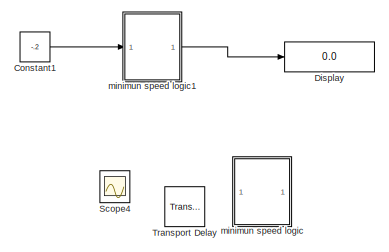
[diagram: root canvas - part 1/2, middle left region]
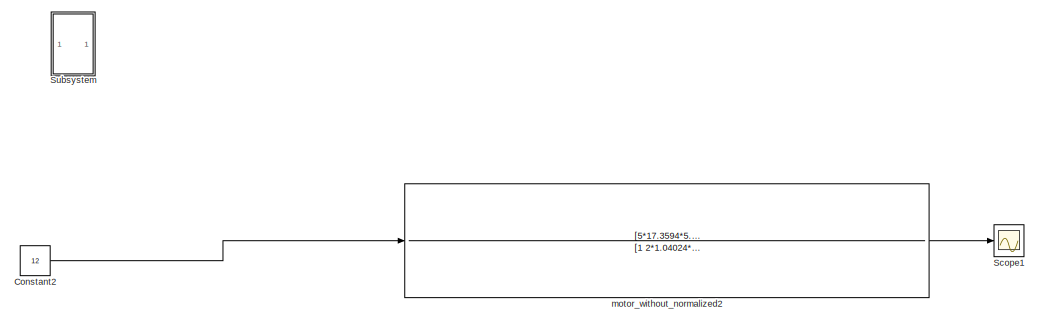
[diagram: root canvas - part 2/2, right side, full height]
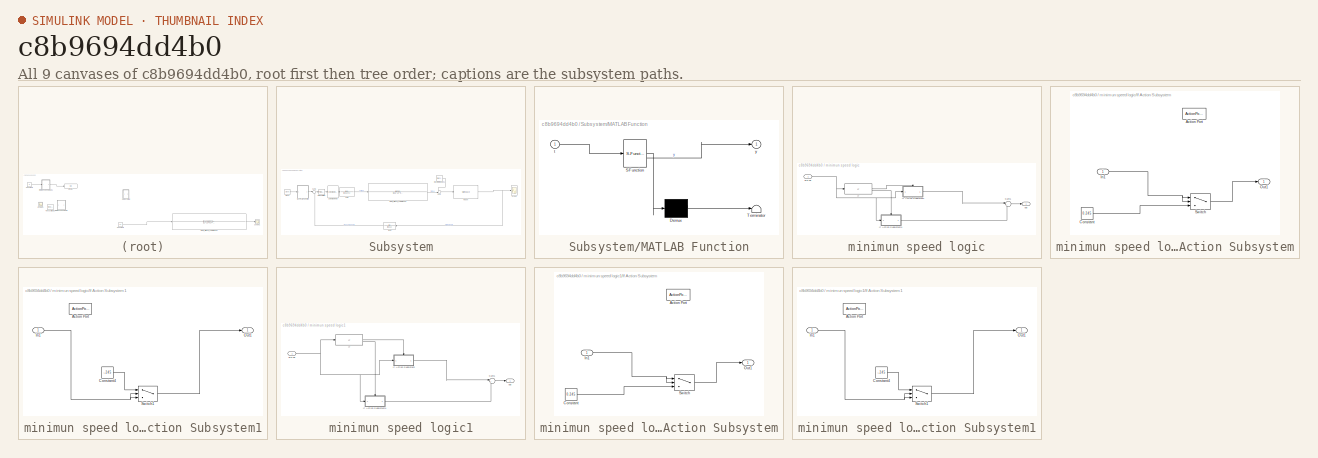
[diagram: thumbnail index - all 9 canvases of the model, root first then tree order]
MODEL slx_c8b9694dd4b0
KIND model
CONFIG AbsTol = auto
CONFIG EnableMultiTasking = off
CONFIG FixedStep = 1e-6
CONFIG MaxStep = auto
CONFIG MinStep = auto
CONFIG RelTol = 1e-3
CONFIG SampleTimeConstraint = Unconstrained
CONFIG SolverName = VariableStepAuto
CONFIG StartTime = 0.0
CONFIG StopTime = 1.5
BLOCK [Constant] Constant1
  Commented = on
  Value = -.2
BLOCK [Constant] Constant2
  Commented = on
  Value = 12
BLOCK [Display] Display
  Commented = on
  Decimation = 1
BLOCK [Scope] Scope1
  Commented = on
  Floating = off
  NumInputPorts = 1
  ScopeSpecificationString = Simulink.scopes.TimeScopeBlockCfg('CurrentConfiguration', extmgr.ConfigurationSet(extmgr.Configuration('Core','General UI',true),extmgr.Configuration('Core','Source UI',true),extmgr.Configuration('Sources','WiredSimulink',true,'DataLoggingVariableName','ScopeData1'),extmgr.Configuration('Visuals','Time Domain',true,'SerializedDisplays',{struct('MinYLimReal','-0.45358','MaxYLimReal','4.08218','YLab...<+1461ch>
BLOCK [Scope] Scope4
  Commented = on
  Floating = off
  NumInputPorts = 1
  ScopeSpecificationString = Simulink.scopes.TimeScopeBlockCfg('CurrentConfiguration', extmgr.ConfigurationSet(extmgr.Configuration('Core','General UI',true),extmgr.Configuration('Core','Source UI',true),extmgr.Configuration('Sources','WiredSimulink',true,'DataLoggingVariableName','ScopeData1'),extmgr.Configuration('Visuals','Time Domain',true,'SerializedDisplays',{struct('MinYLimReal','-56.13831','MaxYLimReal','6.23759','YLa...<+1388ch>
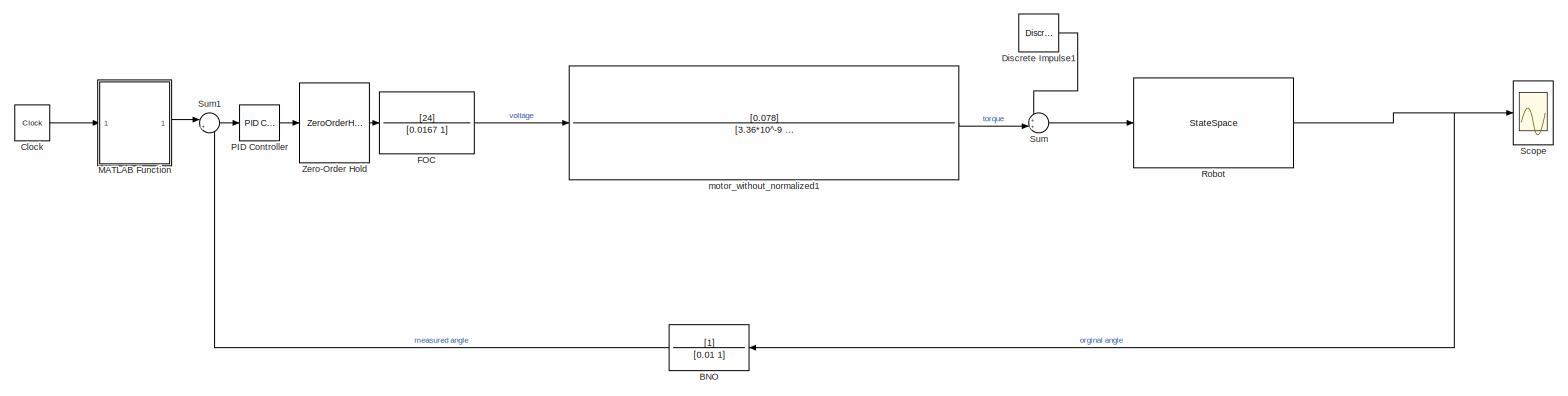
[diagram: Subsystem - part 1/1, most of the canvas]
BLOCK [SubSystem] Subsystem
BLOCK [TransferFcn] Subsystem/BNO
  Denominator = [0.01 1]
BLOCK [Clock] Subsystem/Clock
BLOCK [Reference] Subsystem/Discrete Impulse1  REF=dspsrcs4/Discrete 
Impulse
  SourceBlock = dspsrcs4/Discrete \nImpulse
  SourceType = Discrete Impulse
BLOCK [TransferFcn] Subsystem/FOC
  Denominator = [0.0167 1]
  Numerator = [24]
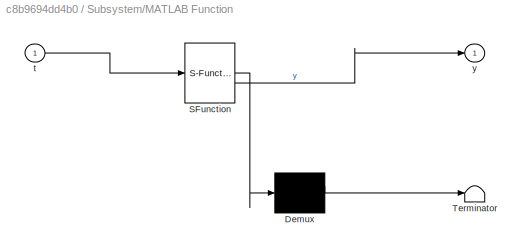
BLOCK [SubSystem] Subsystem/MATLAB Function
  ErrorFcn = Stateflow.Translate.translate
  LibrarySourceBlock = simulink/User-Defined\nFunctions/MATLAB Function
  PermitHierarchicalResolution = ExplicitOnly
  SFBlockType = MATLAB Function
  TreatAsAtomicUnit = on
BLOCK [Demux] Subsystem/MATLAB Function/ Demux 
  Outputs = 1
BLOCK [S-Function] Subsystem/MATLAB Function/ SFunction 
  EnableBusSupport = on
  FunctionName = sf_sfun
  PortCounts = [1 2]
  SFcnIsStateOwnerBlock = off
  SFunctionDeploymentMode = off
  Tag = Stateflow S-Function 2
BLOCK [Terminator] Subsystem/MATLAB Function/ Terminator 
BLOCK [Inport] Subsystem/MATLAB Function/t
BLOCK [Outport] Subsystem/MATLAB Function/y
BLOCK [Reference] Subsystem/PID Controller  REF=slpidlib/PID Controller
  SourceBlock = slpidlib/PID Controller
  SourceType = PID 1dof
BLOCK [StateSpace] Subsystem/Robot
  A = A
  B = B
  C = C
  D = D
  InitialCondition = 0
BLOCK [Scope] Subsystem/Scope
  Floating = off
  NumInputPorts = 1
  ScopeSpecificationString = Simulink.scopes.TimeScopeBlockCfg('CurrentConfiguration', extmgr.ConfigurationSet(extmgr.Configuration('Core','General UI',true,'FigureColor',[1 1 1]),extmgr.Configuration('Core','Source UI',true),extmgr.Configuration('Sources','WiredSimulink',true,'DataLoggingVariableName','ScopeData1'),extmgr.Configuration('Visuals','Time Domain',true,'SerializedDisplays',{struct('MinYLimReal','-0.90885','MaxYLi...<+1666ch>
BLOCK [Sum] Subsystem/Sum
  Inputs = ++|
BLOCK [Sum] Subsystem/Sum1
  Inputs = |+-
BLOCK [ZeroOrderHold] Subsystem/Zero-Order Hold
  SampleTime = 30/1000
BLOCK [TransferFcn] Subsystem/motor_without_normalized1
  Denominator = [3.36*10^-9  4.96*10^-6 10.96]
  Numerator = [0.078]
BLOCK [TransportDelay] Transport Delay
  Commented = on
  DelayTime = 0.1
BLOCK [SubSystem] minimun speed logic
  Commented = on
BLOCK [If] minimun speed logic/If
BLOCK [SubSystem] minimun speed logic/If Action Subsystem
  TreatAsAtomicUnit = on
BLOCK [ActionPort] minimun speed logic/If Action Subsystem/Action Port
BLOCK [Constant] minimun speed logic/If Action Subsystem/Constant
  Value = 0.245
BLOCK [Inport] minimun speed logic/If Action Subsystem/In1
BLOCK [Outport] minimun speed logic/If Action Subsystem/Out1
  VectorParamsAs1DForOutWhenUnconnected = off
BLOCK [Switch] minimun speed logic/If Action Subsystem/Switch
  Criteria = u2 > Threshold
  InputSameDT = off
  SaturateOnIntegerOverflow = off
  Threshold = .245
BLOCK [SubSystem] minimun speed logic/If Action Subsystem1
  TreatAsAtomicUnit = on
BLOCK [ActionPort] minimun speed logic/If Action Subsystem1/Action Port
BLOCK [Constant] minimun speed logic/If Action Subsystem1/Constant4
  Value = -.245
BLOCK [Inport] minimun speed logic/If Action Subsystem1/In1
BLOCK [Outport] minimun speed logic/If Action Subsystem1/Out1
  VectorParamsAs1DForOutWhenUnconnected = off
BLOCK [Switch] minimun speed logic/If Action Subsystem1/Switch1
  Criteria = u2 > Threshold
  InputSameDT = off
  SaturateOnIntegerOverflow = off
  Threshold = -.245
BLOCK [Sum] minimun speed logic/Sum1
  Inputs = |++
BLOCK [Outport] minimun speed logic/out
  VectorParamsAs1DForOutWhenUnconnected = off
BLOCK [Inport] minimun speed logic/pid val
BLOCK [SubSystem] minimun speed logic1
  Commented = on
BLOCK [If] minimun speed logic1/If
BLOCK [SubSystem] minimun speed logic1/If Action Subsystem
  TreatAsAtomicUnit = on
BLOCK [ActionPort] minimun speed logic1/If Action Subsystem/Action Port
  ActionPortLabel = if { }
BLOCK [Constant] minimun speed logic1/If Action Subsystem/Constant
  Value = 0.245
BLOCK [Inport] minimun speed logic1/If Action Subsystem/In1
BLOCK [Outport] minimun speed logic1/If Action Subsystem/Out1
  VectorParamsAs1DForOutWhenUnconnected = off
BLOCK [Switch] minimun speed logic1/If Action Subsystem/Switch
  Criteria = u2 > Threshold
  InputSameDT = off
  SaturateOnIntegerOverflow = off
  Threshold = .245
BLOCK [SubSystem] minimun speed logic1/If Action Subsystem1
  TreatAsAtomicUnit = on
BLOCK [ActionPort] minimun speed logic1/If Action Subsystem1/Action Port
  ActionPortLabel = else { }
BLOCK [Constant] minimun speed logic1/If Action Subsystem1/Constant4
  Value = -.245
BLOCK [Inport] minimun speed logic1/If Action Subsystem1/In1
BLOCK [Outport] minimun speed logic1/If Action Subsystem1/Out1
  VectorParamsAs1DForOutWhenUnconnected = off
BLOCK [Switch] minimun speed logic1/If Action Subsystem1/Switch1
  Criteria = u2 > Threshold
  InputSameDT = off
  SaturateOnIntegerOverflow = off
  Threshold = -.245
BLOCK [Sum] minimun speed logic1/Sum1
  Inputs = |++
BLOCK [Outport] minimun speed logic1/out
  VectorParamsAs1DForOutWhenUnconnected = off
BLOCK [Inport] minimun speed logic1/pid val
BLOCK [TransferFcn] motor_without_normalized2
  Commented = on
  Denominator = [1 2*1.04024*5.1137 5.1137^2]
  Numerator = [5*17.3594*5.1137*Ip 5*17.3594*5.1137*b]
LINE Constant1:1 -> minimun speed logic1:1
LINE Constant2:1 -> motor_without_normalized2:1
LINE Subsystem/BNO:1 -> Subsystem/Sum1:2
LINE Subsystem/Clock:1 -> Subsystem/MATLAB Function:1
LINE Subsystem/Discrete Impulse1:1 -> Subsystem/Sum:1
LINE Subsystem/FOC:1 -> Subsystem/motor_without_normalized1:1
LINE Subsystem/MATLAB Function:1 -> Subsystem/Sum1:1
LINE Subsystem/PID Controller:1 -> Subsystem/Zero-Order Hold:1
NET Subsystem/Robot:1 -> Subsystem/BNO:1, Subsystem/Scope:1
LINE Subsystem/Sum1:1 -> Subsystem/PID Controller:1
LINE Subsystem/Sum:1 -> Subsystem/Robot:1
LINE Subsystem/Zero-Order Hold:1 -> Subsystem/FOC:1
LINE Subsystem/motor_without_normalized1:1 -> Subsystem/Sum:2
LINE minimun speed logic/If Action Subsystem/Constant:1 -> minimun speed logic/If Action Subsystem/Switch:3
NET minimun speed logic/If Action Subsystem/In1:1 -> minimun speed logic/If Action Subsystem/Switch:1, minimun speed logic/If Action Subsystem/Switch:2
LINE minimun speed logic/If Action Subsystem/Switch:1 -> minimun speed logic/If Action Subsystem/Out1:1
LINE minimun speed logic/If Action Subsystem1/Constant4:1 -> minimun speed logic/If Action Subsystem1/Switch1:1
NET minimun speed logic/If Action Subsystem1/In1:1 -> minimun speed logic/If Action Subsystem1/Switch1:2, minimun speed logic/If Action Subsystem1/Switch1:3
LINE minimun speed logic/If Action Subsystem1/Switch1:1 -> minimun speed logic/If Action Subsystem1/Out1:1
LINE minimun speed logic/If Action Subsystem1:1 -> minimun speed logic/Sum1:2
LINE minimun speed logic/If Action Subsystem:1 -> minimun speed logic/Sum1:1
LINE minimun speed logic/If:1 -> minimun speed logic/If Action Subsystem:ifaction
LINE minimun speed logic/If:2 -> minimun speed logic/If Action Subsystem1:ifaction
LINE minimun speed logic/Sum1:1 -> minimun speed logic/out:1
NET minimun speed logic/pid val:1 -> minimun speed logic/If Action Subsystem1:1, minimun speed logic/If Action Subsystem:1, minimun speed logic/If:1
LINE minimun speed logic1/If Action Subsystem/Constant:1 -> minimun speed logic1/If Action Subsystem/Switch:3
NET minimun speed logic1/If Action Subsystem/In1:1 -> minimun speed logic1/If Action Subsystem/Switch:1, minimun speed logic1/If Action Subsystem/Switch:2
LINE minimun speed logic1/If Action Subsystem/Switch:1 -> minimun speed logic1/If Action Subsystem/Out1:1
LINE minimun speed logic1/If Action Subsystem1/Constant4:1 -> minimun speed logic1/If Action Subsystem1/Switch1:1
NET minimun speed logic1/If Action Subsystem1/In1:1 -> minimun speed logic1/If Action Subsystem1/Switch1:2, minimun speed logic1/If Action Subsystem1/Switch1:3
LINE minimun speed logic1/If Action Subsystem1/Switch1:1 -> minimun speed logic1/If Action Subsystem1/Out1:1
LINE minimun speed logic1/If Action Subsystem1:1 -> minimun speed logic1/Sum1:2
LINE minimun speed logic1/If Action Subsystem:1 -> minimun speed logic1/Sum1:1
LINE minimun speed logic1/If:1 -> minimun speed logic1/If Action Subsystem:ifaction
LINE minimun speed logic1/If:2 -> minimun speed logic1/If Action Subsystem1:ifaction
LINE minimun speed logic1/Sum1:1 -> minimun speed logic1/out:1
NET minimun speed logic1/pid val:1 -> minimun speed logic1/If Action Subsystem1:1, minimun speed logic1/If Action Subsystem:1, minimun speed logic1/If:1
LINE minimun speed logic1:1 -> Display:1
LINE motor_without_normalized2:1 -> Scope1:1
note: NET lines group one-source signal fan-out (src -> all destinations, sorted); 1:1 wires keep LINE
CHART Subsystem/MATLAB Function states=1 transitions=1
  STATE_LABEL 'eML_blk_kernel()'
  STATE_LABEL "SCRIPT:\nfunction y = fourier_signal(t)\n    % Load data from file\n    f_k = load('data.txt');\n    \n    % Define parameters\n    M = length(f_k);\n    stride_points = 150;\n    sampling_freq = 100;  \n    delta_t = 1 / sampling_freq;\n    T = stride_points * delta_t;  \n    N = 7; % Number of harmonics\n\n    % Fourier Coefficients Calculation\n    a0 = mean(f_k);\n    a_n = zeros(1, N);\n    b_n = zeros(1, N)...<+380ch>"
CHART  states=0 transitions=0
